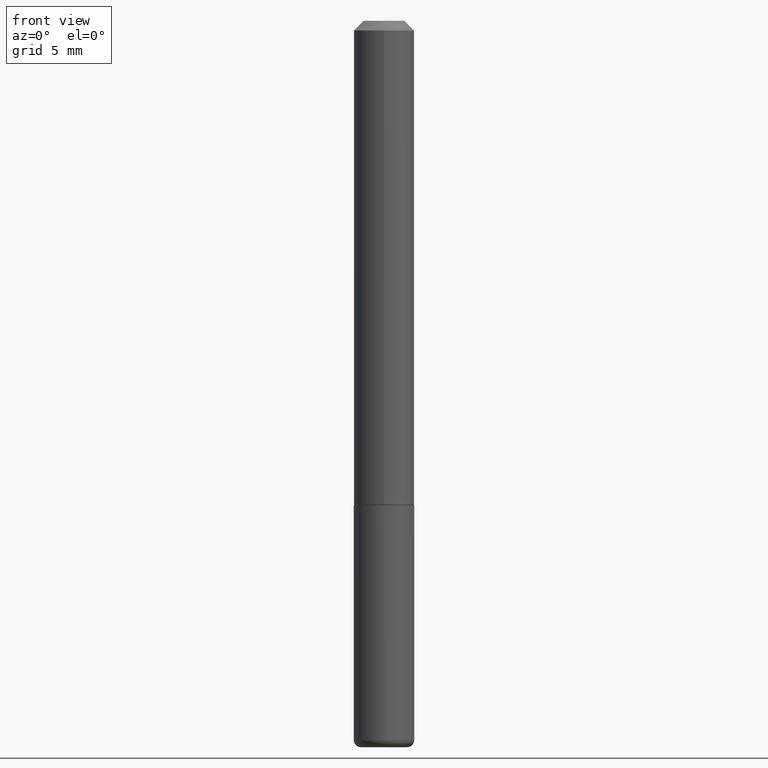
[diagram: clean part render]
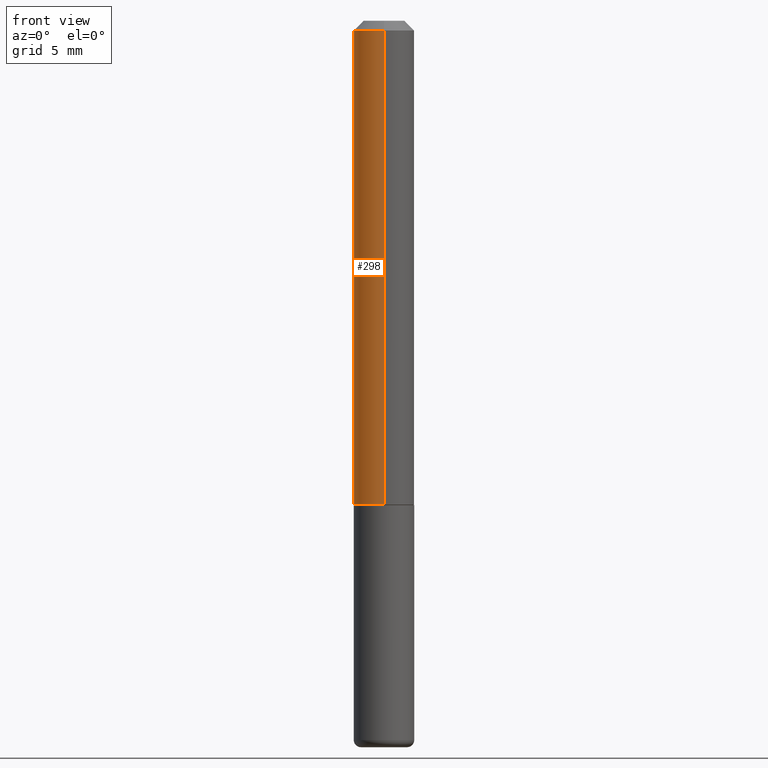
[diagram: same view with one face highlighted and labeled with its STEP entity id]
A machine part, front view. The second image highlights one B-rep face of the part: STEP entity #298.
In plain terms, the highlighted cylindrical surface (edge-blend (fillet) strip) has radius 1.5875 mm, axis along (-0, 0, 1).
Its self-contained STEP definition (entity closure, byte-faithful):
#8 = LINE ( 'NONE', #141, #350 ) ;
#9 = ORIENTED_EDGE ( 'NONE', *, *, #133, .T. ) ;
#10 = CARTESIAN_POINT ( 'NONE',  ( 0.000000000000000000, 0.000000000000000000, 0.000000000000000000 ) ) ;
#42 = DIRECTION ( 'NONE',  ( -6.982962677686265133E-15, -1.000000000000000000, 4.370956789862812472E-15 ) ) ;
#44 = CARTESIAN_POINT ( 'NONE',  ( -4.364351673553918666E-16, -0.06250000000000002776, 2.202571976932416997E-16 ) ) ;
#58 = DIRECTION ( 'NONE',  ( -2.422680728509238326E-29, 3.524115163091865223E-15, 1.000000000000000000 ) ) ;
#59 = ORIENTED_EDGE ( 'NONE', *, *, #401, .T. ) ;
#65 = EDGE_CURVE ( 'NONE', #371, #73, #297, .T. ) ;
#73 = VERTEX_POINT ( 'NONE', #123 ) ;
#79 = CARTESIAN_POINT ( 'NONE',  ( 4.440892098500754352E-16, 0.06249999999999659994, -0.9990000000000002212 ) ) ;
#91 = CARTESIAN_POINT ( 'NONE',  ( -4.364351673553682501E-16, -0.06250000000000363598, -0.9989999999999996660 ) ) ;
#103 = CIRCLE ( 'NONE', #114, 0.06250000000000012490 ) ;
#108 = FACE_OUTER_BOUND ( 'NONE', #292, .T. ) ;
#114 = AXIS2_PLACEMENT_3D ( 'NONE', #267, #207, #42 ) ;
#123 = CARTESIAN_POINT ( 'NONE',  ( -4.287811248607198352E-16, -0.06250000000000001388, -0.01999999999999984776 ) ) ;
#129 = DIRECTION ( 'NONE',  ( -6.982962677686265922E-15, -1.000000000000000000, 3.551402391763545142E-15 ) ) ;
#133 = EDGE_CURVE ( 'NONE', #326, #227, #103, .T. ) ;
#141 = CARTESIAN_POINT ( 'NONE',  ( 4.440892098500628134E-16, 0.06250000000000002776, -2.202571976932416997E-16 ) ) ;
#143 = CYLINDRICAL_SURFACE ( 'NONE', #368, 0.06250000000000002776 ) ;
#179 = CARTESIAN_POINT ( 'NONE',  ( 4.364351673553917187E-16, 0.06249999999999988204, -0.02000000000000029185 ) ) ;
#207 = DIRECTION ( 'NONE',  ( -2.422680728509238326E-29, 3.524115163091865223E-15, 1.000000000000000000 ) ) ;
#215 = AXIS2_PLACEMENT_3D ( 'NONE', #282, #58, #129 ) ;
#225 = ORIENTED_EDGE ( 'NONE', *, *, #340, .F. ) ;
#227 = VERTEX_POINT ( 'NONE', #91 ) ;
#240 = DIRECTION ( 'NONE',  ( -2.422680728509238326E-29, 3.524115163091865223E-15, 1.000000000000000000 ) ) ;
#243 = LINE ( 'NONE', #44, #266 ) ;
#266 = VECTOR ( 'NONE', #269, 39.37007874015748143 ) ;
#267 = CARTESIAN_POINT ( 'NONE',  ( 2.420258047780728810E-29, -3.520591047928773206E-15, -0.9989999999999998881 ) ) ;
#269 = DIRECTION ( 'NONE',  ( -2.422680728509238606E-29, 3.524115163091865618E-15, 1.000000000000000000 ) ) ;
#275 = DIRECTION ( 'NONE',  ( -2.422680728509238606E-29, 3.524115163091865618E-15, 1.000000000000000000 ) ) ;
#282 = CARTESIAN_POINT ( 'NONE',  ( 4.845361457018493257E-31, -7.048230326183754359E-17, -0.02000000000000006981 ) ) ;
#292 = EDGE_LOOP ( 'NONE', ( #225, #9, #59, #369 ) ) ;
#297 = CIRCLE ( 'NONE', #215, 0.06249999999999995143 ) ;
#298 = ADVANCED_FACE ( 'NONE', ( #108 ), #143, .T. ) ;
#326 = VERTEX_POINT ( 'NONE', #79 ) ;
#340 = EDGE_CURVE ( 'NONE', #326, #371, #8, .T. ) ;
#350 = VECTOR ( 'NONE', #275, 39.37007874015748143 ) ;
#361 = DIRECTION ( 'NONE',  ( -6.982962677686266711E-15, -1.000000000000000000, 3.524115163091865618E-15 ) ) ;
#368 = AXIS2_PLACEMENT_3D ( 'NONE', #10, #240, #361 ) ;
#369 = ORIENTED_EDGE ( 'NONE', *, *, #65, .F. ) ;
#371 = VERTEX_POINT ( 'NONE', #179 ) ;
#401 = EDGE_CURVE ( 'NONE', #227, #73, #243, .T. ) ;